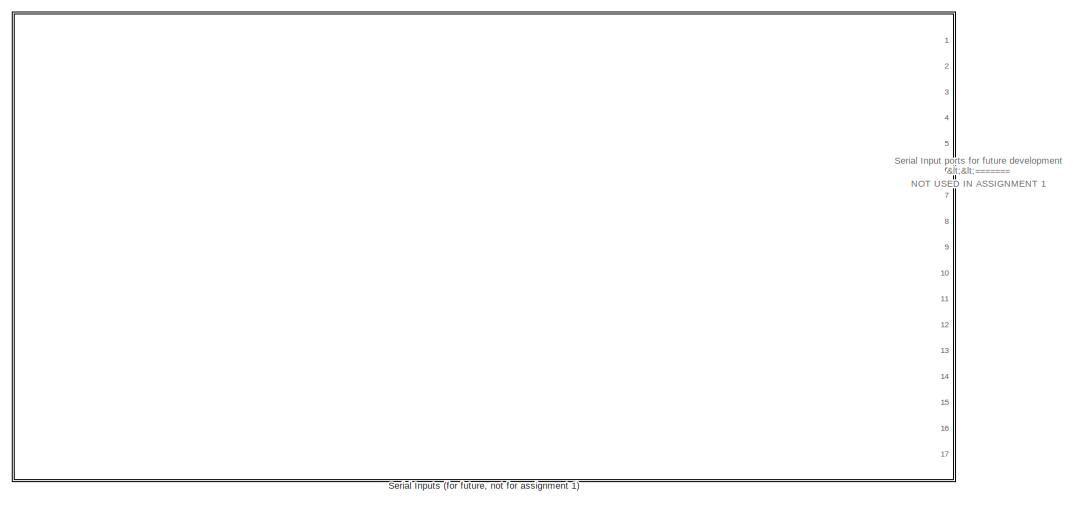
[diagram: root canvas - part 1/4, top left region]
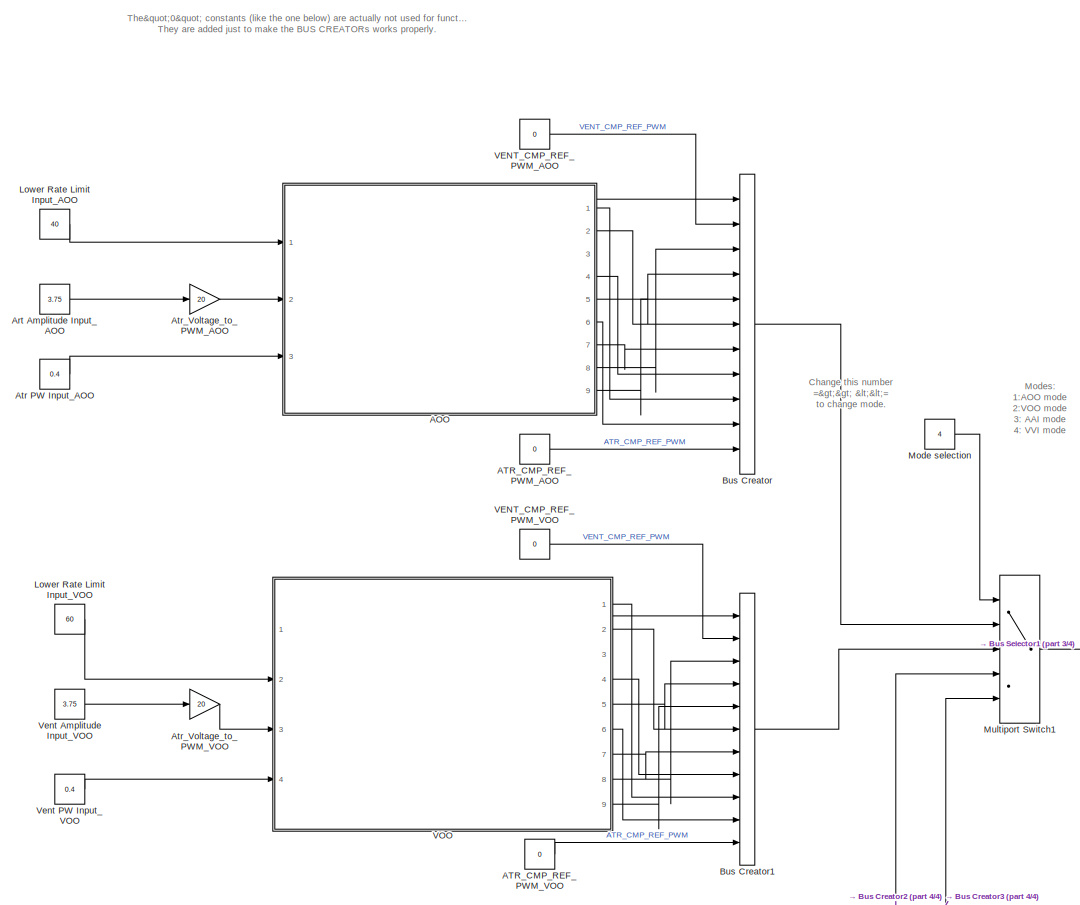
[diagram: root canvas - part 2/4, central region]
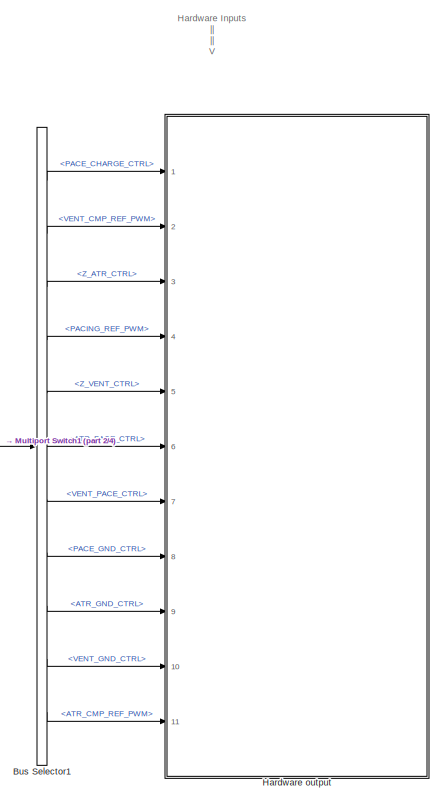
[diagram: root canvas - part 3/4, middle right region]
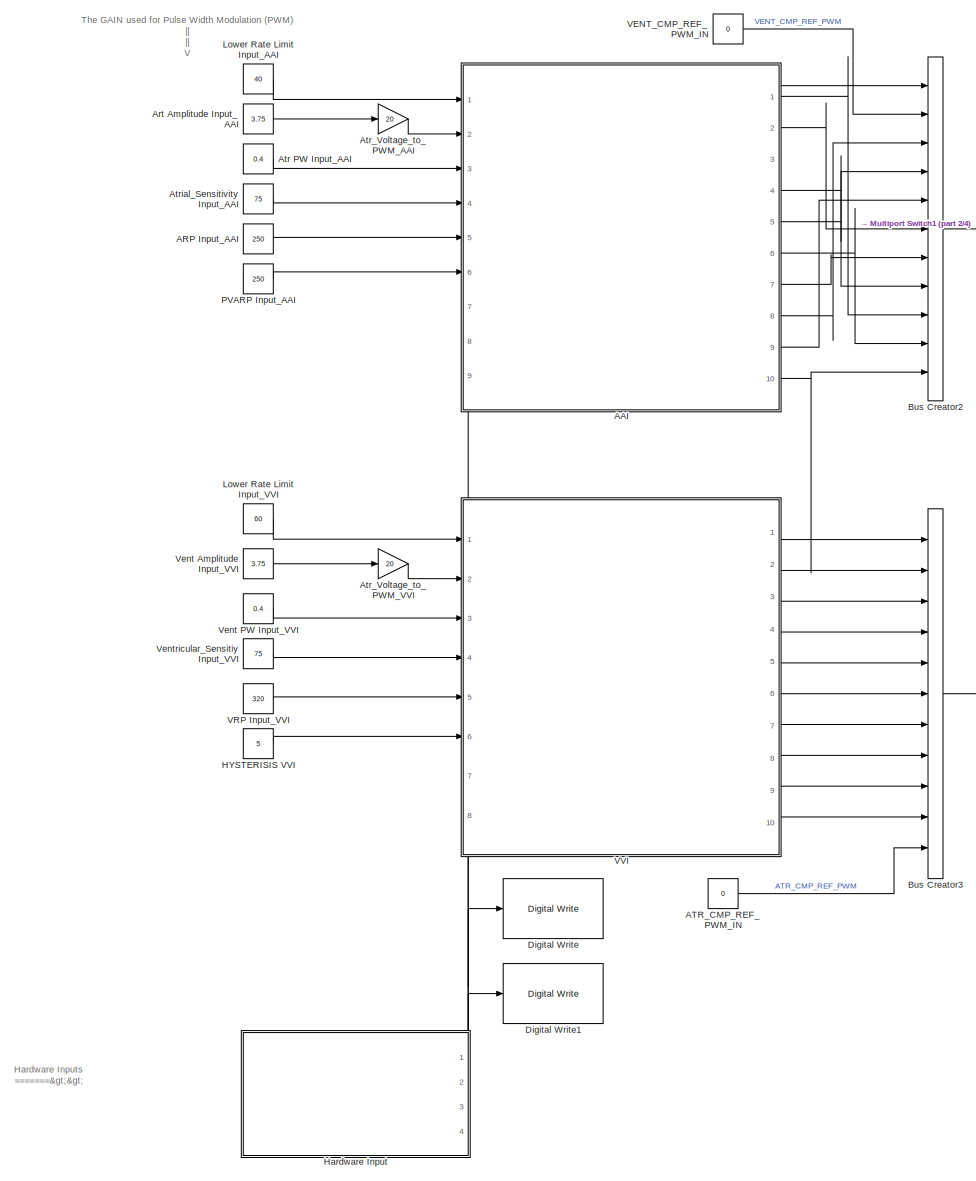
[diagram: root canvas - part 4/4, bottom center region]
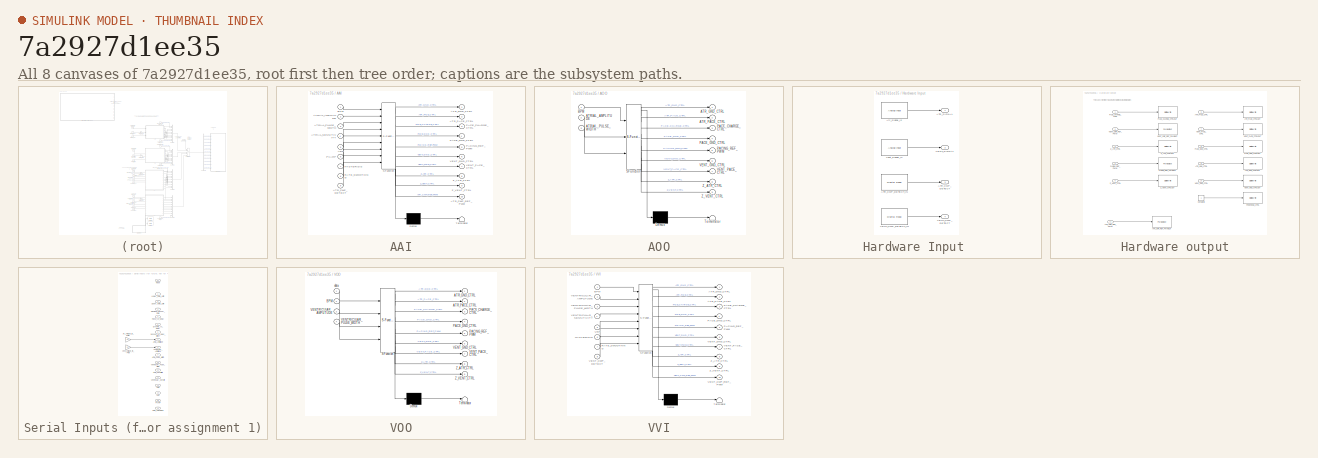
[diagram: thumbnail index - all 8 canvases of the model, root first then tree order]
MODEL slx_7a2927d1ee35
KIND model
CONFIG AbsTol = auto
CONFIG EnableMultiTasking = on
CONFIG FixedStep = 1e-3
CONFIG MaxStep = auto
CONFIG MinStep = auto
CONFIG RelTol = 1e-3
CONFIG SampleTimeConstraint = Unconstrained
CONFIG Solver = FixedStepAuto
CONFIG SolverName = FixedStepAuto
CONFIG StartTime = 0.0
CONFIG StopTime = 10.0
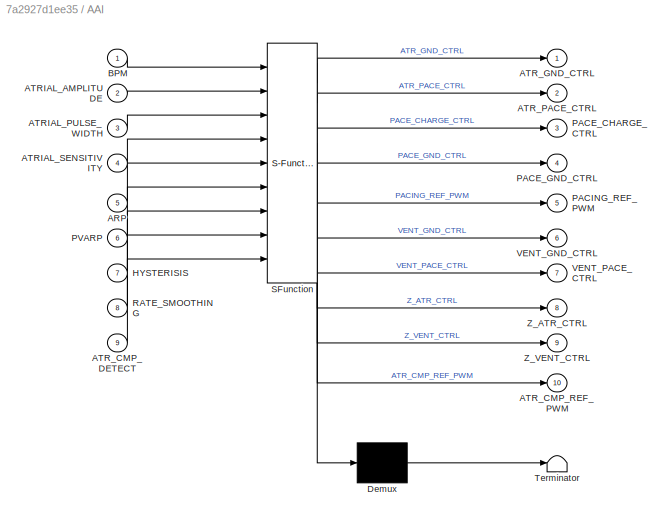
BLOCK [SubSystem] AAI
  ErrorFcn = Stateflow.Translate.translate
  PermitHierarchicalResolution = ExplicitOnly
  PortSchema = {"entries":[{"content":{"sides":[{"content":{"connectorIds":["In1","In2","In3","In4","In5","In6","In7","In8","In9"]},"type":"ConnectorPlacement.EquallySpacedRectSide","uuid":"b678de6f-9e61-4024-a0aa-5bf6d03f3d0b"},{"content":{"connectorIds":["Out3","Out8","Out5","Out10","Out9","Out2","Out7","Out4","Out1","Out6"],"side":"RIGHT"},"type":"ConnectorPlacement.EquallySpacedRectSide","uuid":"4cd0faad-dd9...<+498ch>
  Ports = [9, 10]
  RequestExecContextInheritance = off
  SFBlockType = Chart
  TreatAsAtomicUnit = on
BLOCK [Demux] AAI/ Demux 
  Outputs = 1
  Ports = [1, 1]
BLOCK [S-Function] AAI/ SFunction 
  EnableBusSupport = on
  FunctionName = sf_sfun
  PortCounts = [9 11]
  Ports = [9, 11]
  SFcnIsStateOwnerBlock = off
  SFunctionDeploymentMode = off
  Tag = Stateflow S-Function 5
BLOCK [Terminator] AAI/ Terminator 
BLOCK [Inport] AAI/ARP
  Port = 5
BLOCK [Inport] AAI/ATRIAL_AMPLITUDE
  Port = 2
BLOCK [Inport] AAI/ATRIAL_PULSE_WIDTH
  Port = 3
BLOCK [Inport] AAI/ATRIAL_SENSITIVITY
  Port = 4
BLOCK [Inport] AAI/ATR_CMP_DETECT
  Port = 9
BLOCK [Outport] AAI/ATR_CMP_REF_PWM
  Port = 10
BLOCK [Outport] AAI/ATR_GND_CTRL
BLOCK [Outport] AAI/ATR_PACE_CTRL
  Port = 2
BLOCK [Inport] AAI/BPM
BLOCK [Inport] AAI/HYSTERISIS
  Port = 7
BLOCK [Outport] AAI/PACE_CHARGE_CTRL
  Port = 3
BLOCK [Outport] AAI/PACE_GND_CTRL
  Port = 4
BLOCK [Outport] AAI/PACING_REF_PWM
  Port = 5
BLOCK [Inport] AAI/PVARP
  Port = 6
BLOCK [Inport] AAI/RATE_SMOOTHING
  Port = 8
BLOCK [Outport] AAI/VENT_GND_CTRL
  Port = 6
BLOCK [Outport] AAI/VENT_PACE_CTRL
  Port = 7
BLOCK [Outport] AAI/Z_ATR_CTRL
  Port = 8
BLOCK [Outport] AAI/Z_VENT_CTRL
  Port = 9
BLOCK [SubSystem] AOO
  ErrorFcn = Stateflow.Translate.translate
  PermitHierarchicalResolution = ExplicitOnly
  PortSchema = {"entries":[{"content":{"sides":[{"content":{"connectorIds":["In1","In2","In3"]},"type":"ConnectorPlacement.EquallySpacedRectSide","uuid":"a22e05d8-b46e-41db-a99f-a3bab389e16c"},{"content":{"connectorIds":["Out3","Out8","Out5","Out9","Out2","Out7","Out4","Out1","Out6"],"side":"RIGHT"},"type":"ConnectorPlacement.EquallySpacedRectSide","uuid":"b830ec1d-656a-4b92-afcd-8fda6b31ad8a"},{"content":{"conn...<+310ch>
  Ports = [3, 9]
  RequestExecContextInheritance = off
  SFBlockType = Chart
  TreatAsAtomicUnit = on
BLOCK [Demux] AOO/ Demux 
  Outputs = 1
  Ports = [1, 1]
BLOCK [S-Function] AOO/ SFunction 
  EnableBusSupport = on
  FunctionName = sf_sfun
  PortCounts = [3 10]
  Ports = [3, 10]
  SFcnIsStateOwnerBlock = off
  SFunctionDeploymentMode = off
  Tag = Stateflow S-Function 3
BLOCK [Terminator] AOO/ Terminator 
BLOCK [Inport] AOO/ATRIAL_AMPLITUDE
  Port = 2
BLOCK [Inport] AOO/ATRIAL_PULSE_WIDTH
  Port = 3
BLOCK [Outport] AOO/ATR_GND_CTRL
BLOCK [Outport] AOO/ATR_PACE_CTRL
  Port = 2
BLOCK [Inport] AOO/BPM
BLOCK [Outport] AOO/PACE_CHARGE_CTRL
  Port = 3
BLOCK [Outport] AOO/PACE_GND_CTRL
  Port = 4
BLOCK [Outport] AOO/PACING_REF_PWM
  Port = 5
BLOCK [Outport] AOO/VENT_GND_CTRL
  Port = 6
BLOCK [Outport] AOO/VENT_PACE_CTRL
  Port = 7
BLOCK [Outport] AOO/Z_ATR_CTRL
  Port = 8
BLOCK [Outport] AOO/Z_VENT_CTRL
  Port = 9
BLOCK [Constant] ARP Input_AAI
  Value = 250
BLOCK [Constant] ATR_CMP_REF_PWM_AOO
  Value = 0
BLOCK [Constant] ATR_CMP_REF_PWM_IN
  Value = 0
BLOCK [Constant] ATR_CMP_REF_PWM_VOO
  Value = 0
BLOCK [Constant] Art Amplitude Input_AAI
  Value = 3.75
BLOCK [Constant] Art Amplitude Input_AOO
  Value = 3.75
BLOCK [Constant] Atr PW Input_AAI
  Value = 0.4
BLOCK [Constant] Atr PW Input_AOO
  Value = 0.4
BLOCK [Gain] Atr_Voltage_to_PWM_AAI
  Gain = 20
BLOCK [Gain] Atr_Voltage_to_PWM_AOO
  Gain = 20
BLOCK [Gain] Atr_Voltage_to_PWM_VOO
  Gain = 20
BLOCK [Gain] Atr_Voltage_to_PWM_VVI
  Gain = 20
BLOCK [Constant] Atrial_Sensitivity Input_AAI
  Value = 75
BLOCK [BusCreator] Bus Creator
  DisplayOption = bar
  InheritFromInputs = on
  Inputs = 11
  Ports = [11, 1]
BLOCK [BusCreator] Bus Creator1
  DisplayOption = bar
  InheritFromInputs = on
  Inputs = 11
  Ports = [11, 1]
BLOCK [BusCreator] Bus Creator2
  DisplayOption = bar
  InheritFromInputs = on
  Inputs = 11
  Ports = [11, 1]
BLOCK [BusCreator] Bus Creator3
  DisplayOption = bar
  InheritFromInputs = on
  Inputs = 11
  Ports = [11, 1]
BLOCK [BusSelector] Bus Selector1
  OutputSignals = PACE_CHARGE_CTRL,VENT_CMP_REF_PWM,Z_ATR_CTRL,PACING_REF_PWM,Z_VENT_CTRL,ATR_PACE_CTRL,VENT_PACE_CTRL,PACE_GND_CTRL,ATR_GND_CTRL,VENT_GND_CTRL,ATR_CMP_REF_PWM
  Ports = [1, 11]
BLOCK [Reference] Digital Write  REF=frdmk64flib/Digital Write
  Ports = [1]
  SourceBlock = frdmk64flib/Digital Write
  SourceProductBaseCode = EC_FRDM_K64F
  SourceType = freedomk64f.DigitalWrite
BLOCK [Reference] Digital Write1  REF=frdmk64flib/Digital Write
  Ports = [1]
  SourceBlock = frdmk64flib/Digital Write
  SourceProductBaseCode = EC_FRDM_K64F
  SourceType = freedomk64f.DigitalWrite
BLOCK [Constant] HYSTERISIS VVI
  Value = 5
BLOCK [SubSystem] Hardware Input 
  PortSchema = {"entries":[{"content":{"sides":[{"content":{"connectorIds":[]},"type":"ConnectorPlacement.EquallySpacedRectSide","uuid":"a4541679-de89-4a95-8b75-854a44d8a186"},{"content":{"connectorIds":[],"side":"RIGHT"},"type":"ConnectorPlacement.EquallySpacedRectSide","uuid":"6fd79412-9f15-416b-b660-00aa28626d8b"},{"content":{"connectorIds":["Out1","Out2","Out3","Out4"],"side":"TOP"},"type":"ConnectorPlacemen...<+258ch>
  Ports = [0, 4]
  RequestExecContextInheritance = off
BLOCK [Outport] Hardware Input /ATR_CMP_DETECT
  OutDataTypeStr = boolean
  Port = 3
BLOCK [Reference] Hardware Input /ATR_CMP_DETECT_IN  REF=frdmk64flib/Digital Read
  Ports = [0, 1]
  SourceBlock = frdmk64flib/Digital Read
  SourceProductBaseCode = EC_FRDM_K64F
  SourceType = freedomk64f.DigitalRead
BLOCK [Outport] Hardware Input /ATR_SIGNAL
BLOCK [Reference] Hardware Input /Atr_Signal_In  REF=frdmk64flib/Analog Input
  Ports = [0, 1]
  SourceBlock = frdmk64flib/Analog Input
  SourceProductBaseCode = EC_FRDM_K64F
  SourceType = freedomk64f.AnalogInput
BLOCK [Outport] Hardware Input /VENT_CMP_DETECT
  OutDataTypeStr = boolean
  Port = 4
BLOCK [Reference] Hardware Input /VENT_CMP_DETECT_IN  REF=frdmk64flib/Digital Read
  Ports = [0, 1]
  SourceBlock = frdmk64flib/Digital Read
  SourceProductBaseCode = EC_FRDM_K64F
  SourceType = freedomk64f.DigitalRead
BLOCK [Outport] Hardware Input /VENT_SIGNAL
  Port = 2
BLOCK [Reference] Hardware Input /Vent_Signal_In  REF=frdmk64flib/Analog Input
  Ports = [0, 1]
  SourceBlock = frdmk64flib/Analog Input
  SourceProductBaseCode = EC_FRDM_K64F
  SourceType = freedomk64f.AnalogInput
BLOCK [SubSystem] Hardware output
  Ports = [11]
  RequestExecContextInheritance = off
BLOCK [Inport] Hardware output/ATR_CMP_REF_PWM
  Port = 11
BLOCK [Reference] Hardware output/ATR_CMP_REF_PWMOUT  REF=frdmk64flib/PWM Output
  Ports = [1]
  SourceBlock = frdmk64flib/PWM Output
  SourceProductBaseCode = EC_FRDM_K64F
  SourceType = freedomk64f.PWMOutput
BLOCK [Inport] Hardware output/ATR_GND_CTRL
  Port = 9
BLOCK [Reference] Hardware output/ATR_GND_CTRLOUT  REF=frdmk64flib/Digital Write
  Ports = [1]
  SourceBlock = frdmk64flib/Digital Write
  SourceProductBaseCode = EC_FRDM_K64F
  SourceType = freedomk64f.DigitalWrite
BLOCK [Inport] Hardware output/ATR_PACE_CTRL
  Port = 6
BLOCK [Reference] Hardware output/ATR_PACE_CTRLOUT  REF=frdmk64flib/Digital Write
  Ports = [1]
  SourceBlock = frdmk64flib/Digital Write
  SourceProductBaseCode = EC_FRDM_K64F
  SourceType = freedomk64f.DigitalWrite
BLOCK [Constant] Hardware output/Constant2
BLOCK [Reference] Hardware output/FRONTEND_CTRL  REF=frdmk64flib/Digital Write
  Ports = [1]
  SourceBlock = frdmk64flib/Digital Write
  SourceProductBaseCode = EC_FRDM_K64F
  SourceType = freedomk64f.DigitalWrite
BLOCK [Inport] Hardware output/PACE_CHARGE_CTRL
BLOCK [Reference] Hardware output/PACE_CHARGE_CTRLOUT  REF=frdmk64flib/Digital Write
  Ports = [1]
  SourceBlock = frdmk64flib/Digital Write
  SourceProductBaseCode = EC_FRDM_K64F
  SourceType = freedomk64f.DigitalWrite
BLOCK [Inport] Hardware output/PACE_GND_CTRL
  Port = 8
BLOCK [Reference] Hardware output/PACE_GND_CTRLOUT  REF=frdmk64flib/Digital Write
  Ports = [1]
  SourceBlock = frdmk64flib/Digital Write
  SourceProductBaseCode = EC_FRDM_K64F
  SourceType = freedomk64f.DigitalWrite
BLOCK [Inport] Hardware output/PACING_REF_PWM
  Port = 4
BLOCK [Reference] Hardware output/PACING_REF_PWMOUT  REF=frdmk64flib/PWM Output
  Ports = [1]
  SourceBlock = frdmk64flib/PWM Output
  SourceProductBaseCode = EC_FRDM_K64F
  SourceType = freedomk64f.PWMOutput
BLOCK [Inport] Hardware output/VENT_CMP_REF_PWM
  Port = 2
BLOCK [Reference] Hardware output/VENT_CMP_REF_PWMOUT  REF=frdmk64flib/PWM Output
  Ports = [1]
  SourceBlock = frdmk64flib/PWM Output
  SourceProductBaseCode = EC_FRDM_K64F
  SourceType = freedomk64f.PWMOutput
BLOCK [Inport] Hardware output/VENT_GND_CTRL
  Port = 10
BLOCK [Reference] Hardware output/VENT_GND_CTRLOUT  REF=frdmk64flib/Digital Write
  Ports = [1]
  SourceBlock = frdmk64flib/Digital Write
  SourceProductBaseCode = EC_FRDM_K64F
  SourceType = freedomk64f.DigitalWrite
BLOCK [Inport] Hardware output/VENT_PACE_CTRL
  Port = 7
BLOCK [Reference] Hardware output/VENT_PACE_CTRLOUT  REF=frdmk64flib/Digital Write
  Ports = [1]
  SourceBlock = frdmk64flib/Digital Write
  SourceProductBaseCode = EC_FRDM_K64F
  SourceType = freedomk64f.DigitalWrite
BLOCK [Inport] Hardware output/Z_ATR_CTRL
  Port = 3
BLOCK [Reference] Hardware output/Z_ATR_CTRLOUT  REF=frdmk64flib/Digital Write
  Ports = [1]
  SourceBlock = frdmk64flib/Digital Write
  SourceProductBaseCode = EC_FRDM_K64F
  SourceType = freedomk64f.DigitalWrite
BLOCK [Inport] Hardware output/Z_VENT_CTRL
  Port = 5
BLOCK [Reference] Hardware output/Z_VENT_CTRLOUT  REF=frdmk64flib/Digital Write
  Ports = [1]
  SourceBlock = frdmk64flib/Digital Write
  SourceProductBaseCode = EC_FRDM_K64F
  SourceType = freedomk64f.DigitalWrite
BLOCK [Constant] Lower Rate Limit Input_AAI
  Value = 40
BLOCK [Constant] Lower Rate Limit Input_AOO
  Value = 40
BLOCK [Constant] Lower Rate Limit Input_VOO
  Value = 60
BLOCK [Constant] Lower Rate Limit Input_VVI
  Value = 60
BLOCK [Constant] Mode selection
  Value = 4
BLOCK [MultiPortSwitch] Multiport Switch1
  DiagnosticForDefault = Warning
  InputSameDT = off
  Inputs = 4
  Ports = [5, 1]
  SaturateOnIntegerOverflow = off
BLOCK [Constant] PVARP Input_AAI
  Value = 250
BLOCK [SubSystem] Serial Inputs (for future, not for assignment 1)
  Commented = on
  NameLocation = top
  PortSchema = {"entries":[{"content":{"sides":[{"content":{"connectorIds":[]},"type":"ConnectorPlacement.EquallySpacedRectSide","uuid":"703cf520-d471-4fb9-b1b3-e5ef227936b0"},{"content":{"connectorIds":[],"side":"RIGHT"},"type":"ConnectorPlacement.EquallySpacedRectSide","uuid":"164fb1c9-5e01-45a9-8906-aed3049631a5"},{"content":{"connectorIds":[],"side":"TOP"},"type":"ConnectorPlacement.EquallySpacedRectSide","u...<+501ch>
  Ports = [0, 17]
  RequestExecContextInheritance = off
BLOCK [Outport] Serial Inputs (for future, not for assignment 1)/ARP
  Port = 14
BLOCK [Gain] Serial Inputs (for future, not for assignment 1)/Atr_Voltage_to_PWM
  Gain = 20
BLOCK [Outport] Serial Inputs (for future, not for assignment 1)/Atrial_Amplitude
  Port = 7
BLOCK [Outport] Serial Inputs (for future, not for assignment 1)/Atrial_Pulse_Width
  Port = 9
BLOCK [Outport] Serial Inputs (for future, not for assignment 1)/Atrial_Sensitivity
  Port = 11
BLOCK [Outport] Serial Inputs (for future, not for assignment 1)/Dynamic_AV_Delay
  Port = 5
BLOCK [Outport] Serial Inputs (for future, not for assignment 1)/Fixed_AV_Delay
  Port = 4
BLOCK [Outport] Serial Inputs (for future, not for assignment 1)/Lower_Rate_Limit
BLOCK [Outport] Serial Inputs (for future, not for assignment 1)/Maximum_Sensor_Rate
  Port = 3
BLOCK [Outport] Serial Inputs (for future, not for assignment 1)/PVARP
  Port = 15
BLOCK [Outport] Serial Inputs (for future, not for assignment 1)/Rate_Smoothing
  Port = 16
BLOCK [Outport] Serial Inputs (for future, not for assignment 1)/Sensed_AV_Delay_Offset
  Port = 6
BLOCK [Outport] Serial Inputs (for future, not for assignment 1)/Upper_Rate_Limit
  Port = 2
BLOCK [Outport] Serial Inputs (for future, not for assignment 1)/VRP
  Port = 13
BLOCK [Gain] Serial Inputs (for future, not for assignment 1)/Vent_Voltage_to_PWN
  Gain = 20
BLOCK [Outport] Serial Inputs (for future, not for assignment 1)/Ventricular_Amplitude
  Port = 8
BLOCK [Outport] Serial Inputs (for future, not for assignment 1)/Ventricular_Pulse_Width
  Port = 10
BLOCK [Outport] Serial Inputs (for future, not for assignment 1)/Ventricular_Sensitiy
  Port = 12
BLOCK [Outport] Serial Inputs (for future, not for assignment 1)/mode
  Port = 17
BLOCK [Constant] VENT_CMP_REF_PWM_AOO
  Value = 0
BLOCK [Constant] VENT_CMP_REF_PWM_IN
  Value = 0
BLOCK [Constant] VENT_CMP_REF_PWM_VOO
  Value = 0
BLOCK [SubSystem] VOO
  ErrorFcn = Stateflow.Translate.translate
  PermitHierarchicalResolution = ExplicitOnly
  PortSchema = {"entries":[{"content":{"sides":[{"content":{"connectorIds":["In2","In3","In4"]},"type":"ConnectorPlacement.EquallySpacedRectSide","uuid":"a22e05d8-b46e-41db-a99f-a3bab389e16c"},{"content":{"connectorIds":["Out3","Out8","Out5","Out9","Out2","Out7","Out4","Out1","Out6"],"side":"RIGHT"},"type":"ConnectorPlacement.EquallySpacedRectSide","uuid":"b830ec1d-656a-4b92-afcd-8fda6b31ad8a"},{"content":{"conn...<+315ch>
  Ports = [4, 9]
  RequestExecContextInheritance = off
  SFBlockType = Chart
  TreatAsAtomicUnit = on
BLOCK [Demux] VOO/ Demux 
  Outputs = 1
  Ports = [1, 1]
BLOCK [S-Function] VOO/ SFunction 
  EnableBusSupport = on
  FunctionName = sf_sfun
  PortCounts = [4 10]
  Ports = [4, 10]
  SFcnIsStateOwnerBlock = off
  SFunctionDeploymentMode = off
  Tag = Stateflow S-Function 1
BLOCK [Terminator] VOO/ Terminator 
BLOCK [Outport] VOO/ATR_GND_CTRL
BLOCK [Outport] VOO/ATR_PACE_CTRL
  Port = 2
BLOCK [Inport] VOO/BPM
  Port = 2
BLOCK [Outport] VOO/PACE_CHARGE_CTRL
  Port = 3
BLOCK [Outport] VOO/PACE_GND_CTRL
  Port = 4
BLOCK [Outport] VOO/PACING_REF_PWM
  Port = 5
BLOCK [Inport] VOO/VENTRICULAR_AMPLITUDE
  Port = 3
BLOCK [Inport] VOO/VENTRICULAR_PULSE_WIDTH
  Port = 4
BLOCK [Outport] VOO/VENT_GND_CTRL
  Port = 6
BLOCK [Outport] VOO/VENT_PACE_CTRL
  Port = 7
BLOCK [Outport] VOO/Z_ATR_CTRL
  Port = 8
BLOCK [Outport] VOO/Z_VENT_CTRL
  Port = 9
BLOCK [Inport] VOO/data
BLOCK [Constant] VRP Input_VVI
  Value = 320
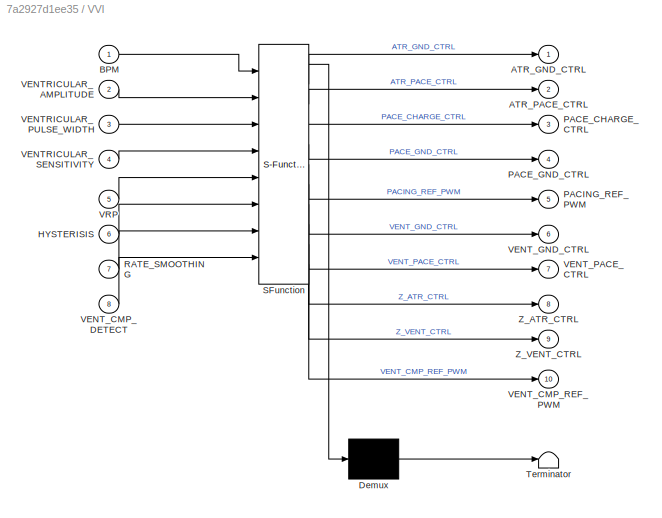
BLOCK [SubSystem] VVI
  ErrorFcn = Stateflow.Translate.translate
  PermitHierarchicalResolution = ExplicitOnly
  PortSchema = {"entries":[{"content":{"sides":[{"content":{"connectorIds":["In1","In2","In3","In4","In5","In6","In7","In8"]},"type":"ConnectorPlacement.EquallySpacedRectSide","uuid":"b678de6f-9e61-4024-a0aa-5bf6d03f3d0b"},{"content":{"connectorIds":["Out3","Out10","Out8","Out5","Out9","Out2","Out7","Out4","Out1","Out6"],"side":"RIGHT"},"type":"ConnectorPlacement.EquallySpacedRectSide","uuid":"4cd0faad-dd9d-4a56...<+492ch>
  Ports = [8, 10]
  RequestExecContextInheritance = off
  SFBlockType = Chart
  TreatAsAtomicUnit = on
BLOCK [Demux] VVI/ Demux 
  Outputs = 1
  Ports = [1, 1]
BLOCK [S-Function] VVI/ SFunction 
  EnableBusSupport = on
  FunctionName = sf_sfun
  PortCounts = [8 11]
  Ports = [8, 11]
  SFcnIsStateOwnerBlock = off
  SFunctionDeploymentMode = off
  Tag = Stateflow S-Function 4
BLOCK [Terminator] VVI/ Terminator 
BLOCK [Outport] VVI/ATR_GND_CTRL
BLOCK [Outport] VVI/ATR_PACE_CTRL
  Port = 2
BLOCK [Inport] VVI/BPM
BLOCK [Inport] VVI/HYSTERISIS
  Port = 6
BLOCK [Outport] VVI/PACE_CHARGE_CTRL
  Port = 3
BLOCK [Outport] VVI/PACE_GND_CTRL
  Port = 4
BLOCK [Outport] VVI/PACING_REF_PWM
  Port = 5
BLOCK [Inport] VVI/RATE_SMOOTHING
  Port = 7
BLOCK [Inport] VVI/VENTRICULAR_AMPLITUDE
  Port = 2
BLOCK [Inport] VVI/VENTRICULAR_PULSE_WIDTH
  Port = 3
BLOCK [Inport] VVI/VENTRICULAR_SENSITIVITY
  Port = 4
BLOCK [Inport] VVI/VENT_CMP_DETECT
  Port = 8
BLOCK [Outport] VVI/VENT_CMP_REF_PWM
  Port = 10
BLOCK [Outport] VVI/VENT_GND_CTRL
  Port = 6
BLOCK [Outport] VVI/VENT_PACE_CTRL
  Port = 7
BLOCK [Inport] VVI/VRP
  Port = 5
BLOCK [Outport] VVI/Z_ATR_CTRL
  Port = 8
BLOCK [Outport] VVI/Z_VENT_CTRL
  Port = 9
BLOCK [Constant] Vent Amplitude Input_VOO
  Value = 3.75
BLOCK [Constant] Vent Amplitude Input_VVI
  Value = 3.75
BLOCK [Constant] Vent PW Input_VOO
  Value = 0.4
BLOCK [Constant] Vent PW Input_VVI
  Value = 0.4
BLOCK [Constant] Ventricular_Sensitiy Input_VVI
  Value = 75
ANNOTATION (root): Modes: 1:AOO mode 2:VOO mode 3: AAI mode 4: VVI mode
ANNOTATION (root): Change this number =>> <<= to change mode.
ANNOTATION (root): Hardware Inputs =======>>
ANNOTATION (root): Hardware Inputs || || V
ANNOTATION (root): Serial Input ports for future development NOT USED IN ASSIGNMENT 1 <<=======
ANNOTATION (root): The GAIN used for Pulse Width Modulation (PWM) || || V
ANNOTATION (root): The"0" constants (like the one below) are actually not used for function. They are added just to make the BUS CREATORs works properly.
ANNOTATION Hardware output: This subsystem is for mapping the stateflow outputs to I/O states
LINE AAI:1 -> Bus Creator2:9
LINE AAI:10 -> Bus Creator2:11
LINE AAI:2 -> Bus Creator2:6
LINE AAI:3 -> Bus Creator2:1
LINE AAI:4 -> Bus Creator2:8
LINE AAI:5 -> Bus Creator2:4
LINE AAI:6 -> Bus Creator2:10
LINE AAI:7 -> Bus Creator2:7
LINE AAI:8 -> Bus Creator2:3
LINE AAI:9 -> Bus Creator2:5
LINE AOO:1 -> Bus Creator:9
LINE AOO:2 -> Bus Creator:6
LINE AOO:3 -> Bus Creator:1
LINE AOO:4 -> Bus Creator:8
LINE AOO:5 -> Bus Creator:4
LINE AOO:6 -> Bus Creator:10
LINE AOO:7 -> Bus Creator:7
LINE AOO:8 -> Bus Creator:3
LINE AOO:9 -> Bus Creator:5
LINE ARP Input_AAI:1 -> AAI:5
LINE ATR_CMP_REF_PWM_AOO:1 -> Bus Creator:11
LINE ATR_CMP_REF_PWM_IN:1 -> Bus Creator3:11
LINE ATR_CMP_REF_PWM_VOO:1 -> Bus Creator1:11
LINE Art Amplitude Input_AAI:1 -> Atr_Voltage_to_PWM_AAI:1
LINE Art Amplitude Input_AOO:1 -> Atr_Voltage_to_PWM_AOO:1
LINE Atr PW Input_AAI:1 -> AAI:3
LINE Atr PW Input_AOO:1 -> AOO:3
LINE Atr_Voltage_to_PWM_AAI:1 -> AAI:2
LINE Atr_Voltage_to_PWM_AOO:1 -> AOO:2
LINE Atr_Voltage_to_PWM_VOO:1 -> VOO:3
LINE Atr_Voltage_to_PWM_VVI:1 -> VVI:2
LINE Atrial_Sensitivity Input_AAI:1 -> AAI:4
LINE Bus Creator1:1 -> Multiport Switch1:3
LINE Bus Creator2:1 -> Multiport Switch1:4
LINE Bus Creator3:1 -> Multiport Switch1:5
LINE Bus Creator:1 -> Multiport Switch1:2
LINE Bus Selector1:1 -> Hardware output:1
LINE Bus Selector1:10 -> Hardware output:10
LINE Bus Selector1:11 -> Hardware output:11
LINE Bus Selector1:2 -> Hardware output:2
LINE Bus Selector1:3 -> Hardware output:3
LINE Bus Selector1:4 -> Hardware output:4
LINE Bus Selector1:5 -> Hardware output:5
LINE Bus Selector1:6 -> Hardware output:6
LINE Bus Selector1:7 -> Hardware output:7
LINE Bus Selector1:8 -> Hardware output:8
LINE Bus Selector1:9 -> Hardware output:9
LINE HYSTERISIS VVI:1 -> VVI:6
LINE Hardware Input /ATR_CMP_DETECT_IN:1 -> Hardware Input /ATR_CMP_DETECT:1
LINE Hardware Input /Atr_Signal_In:1 -> Hardware Input /ATR_SIGNAL:1
LINE Hardware Input /VENT_CMP_DETECT_IN:1 -> Hardware Input /VENT_CMP_DETECT:1
LINE Hardware Input /Vent_Signal_In:1 -> Hardware Input /VENT_SIGNAL:1
NET Hardware Input :3 -> AAI:9, Digital Write:1
NET Hardware Input :4 -> Digital Write1:1, VVI:8
LINE Hardware output/ATR_CMP_REF_PWM:1 -> Hardware output/ATR_CMP_REF_PWMOUT:1
LINE Hardware output/ATR_GND_CTRL:1 -> Hardware output/ATR_GND_CTRLOUT:1
LINE Hardware output/ATR_PACE_CTRL:1 -> Hardware output/ATR_PACE_CTRLOUT:1
LINE Hardware output/Constant2:1 -> Hardware output/FRONTEND_CTRL:1
LINE Hardware output/PACE_CHARGE_CTRL:1 -> Hardware output/PACE_CHARGE_CTRLOUT:1
LINE Hardware output/PACE_GND_CTRL:1 -> Hardware output/PACE_GND_CTRLOUT:1
LINE Hardware output/PACING_REF_PWM:1 -> Hardware output/PACING_REF_PWMOUT:1
LINE Hardware output/VENT_CMP_REF_PWM:1 -> Hardware output/VENT_CMP_REF_PWMOUT:1
LINE Hardware output/VENT_GND_CTRL:1 -> Hardware output/VENT_GND_CTRLOUT:1
LINE Hardware output/VENT_PACE_CTRL:1 -> Hardware output/VENT_PACE_CTRLOUT:1
LINE Hardware output/Z_ATR_CTRL:1 -> Hardware output/Z_ATR_CTRLOUT:1
LINE Hardware output/Z_VENT_CTRL:1 -> Hardware output/Z_VENT_CTRLOUT:1
LINE Lower Rate Limit Input_AAI:1 -> AAI:1
LINE Lower Rate Limit Input_AOO:1 -> AOO:1
LINE Lower Rate Limit Input_VOO:1 -> VOO:2
LINE Lower Rate Limit Input_VVI:1 -> VVI:1
LINE Mode selection:1 -> Multiport Switch1:1
LINE Multiport Switch1:1 -> Bus Selector1:1
LINE PVARP Input_AAI:1 -> AAI:6
LINE Serial Inputs (for future, not for assignment 1)/Atr_Voltage_to_PWM:1 -> Serial Inputs (for future, not for assignment 1)/Atrial_Amplitude:1
LINE Serial Inputs (for future, not for assignment 1)/Vent_Voltage_to_PWN:1 -> Serial Inputs (for future, not for assignment 1)/Ventricular_Amplitude:1
LINE VENT_CMP_REF_PWM_AOO:1 -> Bus Creator:2
LINE VENT_CMP_REF_PWM_IN:1 -> Bus Creator2:2
LINE VENT_CMP_REF_PWM_VOO:1 -> Bus Creator1:2
LINE VOO:1 -> Bus Creator1:9
LINE VOO:2 -> Bus Creator1:6
LINE VOO:3 -> Bus Creator1:1
LINE VOO:4 -> Bus Creator1:8
LINE VOO:5 -> Bus Creator1:4
LINE VOO:6 -> Bus Creator1:10
LINE VOO:7 -> Bus Creator1:7
LINE VOO:8 -> Bus Creator1:3
LINE VOO:9 -> Bus Creator1:5
LINE VRP Input_VVI:1 -> VVI:5
LINE VVI:1 -> Bus Creator3:9
LINE VVI:10 -> Bus Creator3:2
LINE VVI:2 -> Bus Creator3:6
LINE VVI:3 -> Bus Creator3:1
LINE VVI:4 -> Bus Creator3:8
LINE VVI:5 -> Bus Creator3:4
LINE VVI:6 -> Bus Creator3:10
LINE VVI:7 -> Bus Creator3:7
LINE VVI:8 -> Bus Creator3:3
LINE VVI:9 -> Bus Creator3:5
LINE Vent Amplitude Input_VOO:1 -> Atr_Voltage_to_PWM_VOO:1
LINE Vent Amplitude Input_VVI:1 -> Atr_Voltage_to_PWM_VVI:1
LINE Vent PW Input_VOO:1 -> VOO:4
LINE Vent PW Input_VVI:1 -> VVI:3
LINE Ventricular_Sensitiy Input_VVI:1 -> VVI:4
note: NET lines group one-source signal fan-out (src -> all destinations, sorted); 1:1 wires keep LINE
CHART VVI states=10 transitions=9
  STATE_LABEL '<!DOCTYPE HTML PUBLIC "-//W3C//DTD HTML 4.0//EN" "http://www.w3.org/TR/REC-html40/strict.dtd">\n<html><head><meta name="qrichtext" content="1" /><style type="text/css">\np, li { white-space: pre-wrap; }\n</style></head><body align="left" style=" font-family:\'Helvetica\'; font-size:12px; font-weight:400; font-style:normal;">\n<p align="left" style=" margin-top:0px; margin-bottom:0px; margin-left:0px; ma...<+274ch>'
  STATE_LABEL 'INIT\nentry:\nVENT_CMP_REF_PWM = VENTRICULAR_SENSITIVITY;\nPACING_REF_PWM = VENTRICULAR_AMPLITUDE;\nATR_GND_CTRL = 0;\nATR_PACE_CTRL = 0;\nZ_ATR_CTRL = 0;\nZ_VENT_CTRL = 0;\nPACE_GND_CTRL = 1;\nlast_pulse_natural = false;'
  STATE_LABEL 'DISCHARGE\nentry:\nVENT_PACE_CTRL = 0;\nVENT_GND_CTRL = 1;'
  STATE_LABEL 'PULSE_VENT\nentry:\nPACE_CHARGE_CTRL = 0;\nVENT_GND_CTRL = 0;\nVENT_PACE_CTRL = 1;'
  STATE_LABEL 'CHARGE\nentry:\nVENT_PACE_CTRL = 0;\nPACE_CHARGE_CTRL = 1;'
  STATE_LABEL 'PULSE_SET_NATURAL\nentry:\nlast_pulse_natural = true;'
  STATE_LABEL 'PULSE_SET_ARTIFICIAL\nentry:\nlast_pulse_natural = false;'
  STATE_LABEL '<!DOCTYPE HTML PUBLIC "-//W3C//DTD HTML 4.0//EN" "http://www.w3.org/TR/REC-html40/strict.dtd">\n<html><head><meta name="qrichtext" content="1" /><style type="text/css">\np, li { white-space: pre-wrap; }\n</style></head><body align="left" style=" font-family:\'Helvetica\'; font-size:12px; font-weight:400; font-style:normal;">\n<p align="left" style=" margin-top:0px; margin-bottom:0px; margin-left:0px; ma...<+217ch>'
  STATE_LABEL '<!DOCTYPE HTML PUBLIC "-//W3C//DTD HTML 4.0//EN" "http://www.w3.org/TR/REC-html40/strict.dtd">\n<html><head><meta name="qrichtext" content="1" /><style type="text/css">\np, li { white-space: pre-wrap; }\n</style></head><body align="left" style=" font-family:\'Helvetica\'; font-size:12px; font-weight:400; font-style:normal;">\n<p align="left" style=" margin-top:0px; margin-bottom:0px; margin-left:0px; ma...<+482ch>'
  STATE_LABEL 'hold\nentry:\n'
CHART AAI states=10 transitions=10
  STATE_LABEL '<!DOCTYPE HTML PUBLIC "-//W3C//DTD HTML 4.0//EN" "http://www.w3.org/TR/REC-html40/strict.dtd">\n<html><head><meta name="qrichtext" content="1" /><style type="text/css">\np, li { white-space: pre-wrap; }\n</style></head><body align="left" style=" font-family:\'Helvetica\'; font-size:12px; font-weight:400; font-style:normal;">\n<p align="left" style=" margin-top:0px; margin-bottom:0px; margin-left:0px; ma...<+240ch>'
  STATE_LABEL 'INIT\nentry:\nATR_CMP_REF_PWM = ATRIAL_SENSITIVITY;\nPACING_REF_PWM = ATRIAL_AMPLITUDE;\nVENT_GND_CTRL = 0;\nVENT_PACE_CTRL = 0;\nZ_ATR_CTRL = 0;\nZ_VENT_CTRL = 0;\nPACE_GND_CTRL = 1;\nlast_pulse_natural = false;'
  STATE_LABEL 'DISCHARGE\nentry:\nATR_PACE_CTRL = 0;\nATR_GND_CTRL = 1;'
  STATE_LABEL 'CHARGE\nentry:\nATR_PACE_CTRL = 0;\nPACE_CHARGE_CTRL = 1;'
  STATE_LABEL 'PULSE_SET_NATURAL\nentry:\nlast_pulse_natural = true;'
  STATE_LABEL '<!DOCTYPE HTML PUBLIC "-//W3C//DTD HTML 4.0//EN" "http://www.w3.org/TR/REC-html40/strict.dtd">\n<html><head><meta name="qrichtext" content="1" /><style type="text/css">\np, li { white-space: pre-wrap; }\n</style></head><body align="left" style=" font-family:\'Helvetica\'; font-size:12px; font-weight:400; font-style:normal;">\n<p align="left" style=" margin-top:0px; margin-bottom:0px; margin-left:0px; ma...<+217ch>'
  STATE_LABEL 'PULSE_ATR\nentry:\nPACE_CHARGE_CTRL = 0;\nATR_GND_CTRL = 0;\nATR_PACE_CTRL = 1;'
  STATE_LABEL 'hold\nentry:\n'
  STATE_LABEL '<!DOCTYPE HTML PUBLIC "-//W3C//DTD HTML 4.0//EN" "http://www.w3.org/TR/REC-html40/strict.dtd">\n<html><head><meta name="qrichtext" content="1" /><style type="text/css">\np, li { white-space: pre-wrap; }\n</style></head><body align="left" style=" font-family:\'Helvetica\'; font-size:12px; font-weight:400; font-style:normal;">\n<p align="left" style=" margin-top:0px; margin-bottom:0px; margin-left:0px; ma...<+479ch>'
  STATE_LABEL 'PULSE_SET_ARTIFICIAL\nentry:\nlast_pulse_natural = false;'
CHART VOO states=4 transitions=4
  STATE_LABEL '<!DOCTYPE HTML PUBLIC "-//W3C//DTD HTML 4.0//EN" "http://www.w3.org/TR/REC-html40/strict.dtd">\n<html><head><meta name="qrichtext" content="1" /><style type="text/css">\np, li { white-space: pre-wrap; }\n</style></head><body align="left" style=" font-family:\'Helvetica\'; font-size:12px; font-weight:400; font-style:normal;">\n<p align="left" style=" margin-top:0px; margin-bottom:0px; margin-left:0px; ma...<+256ch>'
  STATE_LABEL 'CHARGE\nentry:\nATR_PACE_CTRL = 0;\nVENT_PACE_CTRL = 0;\nPACING_REF_PWM = VENTRICULAR_AMPLITUDE;\nPACE_CHARGE_CTRL = 1;'
  STATE_LABEL 'PULSE_VENT\nentry:\nPACE_CHARGE_CTRL = 0;\nPACE_GND_CTRL = 1;\nATR_PACE_CTRL = 0;\nATR_GND_CTRL = 0;\nZ_ATR_CTRL = 0;\nZ_VENT_CTRL = 0;\nVENT_GND_CTRL = 0;\nVENT_PACE_CTRL = 1;'
  STATE_LABEL 'DISCHARGE\nentry:\nPACE_GND_CTRL = 1;\nVENT_PACE_CTRL = 0;\nZ_ATR_CTRL = 0;\nZ_VENT_CTRL = 0;\nATR_PACE_CTRL = 0;\nATR_GND_CTRL = 0;\nVENT_GND_CTRL = 1;'
CHART AOO states=4 transitions=4
  STATE_LABEL '<!DOCTYPE HTML PUBLIC "-//W3C//DTD HTML 4.0//EN" "http://www.w3.org/TR/REC-html40/strict.dtd">\n<html><head><meta name="qrichtext" content="1" /><style type="text/css">\np, li { white-space: pre-wrap; }\n</style></head><body align="left" style=" font-family:\'Helvetica\'; font-size:12px; font-weight:400; font-style:normal;">\n<p align="left" style=" margin-top:0px; margin-bottom:0px; margin-left:0px; ma...<+253ch>'
  STATE_LABEL 'CHARGE\nentry:\nATR_PACE_CTRL = 0;\nVENT_PACE_CTRL = 0;\nPACING_REF_PWM = ATRIAL_AMPLITUDE;\nPACE_CHARGE_CTRL = 1;'
  STATE_LABEL 'PULSE_ATR\nentry:\nPACE_CHARGE_CTRL = 0;\nPACE_GND_CTRL = 1;\nVENT_GND_CTRL = 0;\nVENT_PACE_CTRL = 0;\nZ_ATR_CTRL = 0;\nZ_VENT_CTRL = 0;\nATR_GND_CTRL = 0;\nATR_PACE_CTRL = 1;\n'
  STATE_LABEL 'DISCHARGE\nentry:\nPACE_GND_CTRL = 1;\nVENT_PACE_CTRL = 0;\nZ_ATR_CTRL = 0;\nZ_VENT_CTRL = 0;\nATR_PACE_CTRL = 0;\nATR_GND_CTRL = 0;\nVENT_GND_CTRL = 1;'
CHART  states=0 transitions=0
CHART  states=0 transitions=0
CHART  states=0 transitions=0
CHART  states=0 transitions=0
